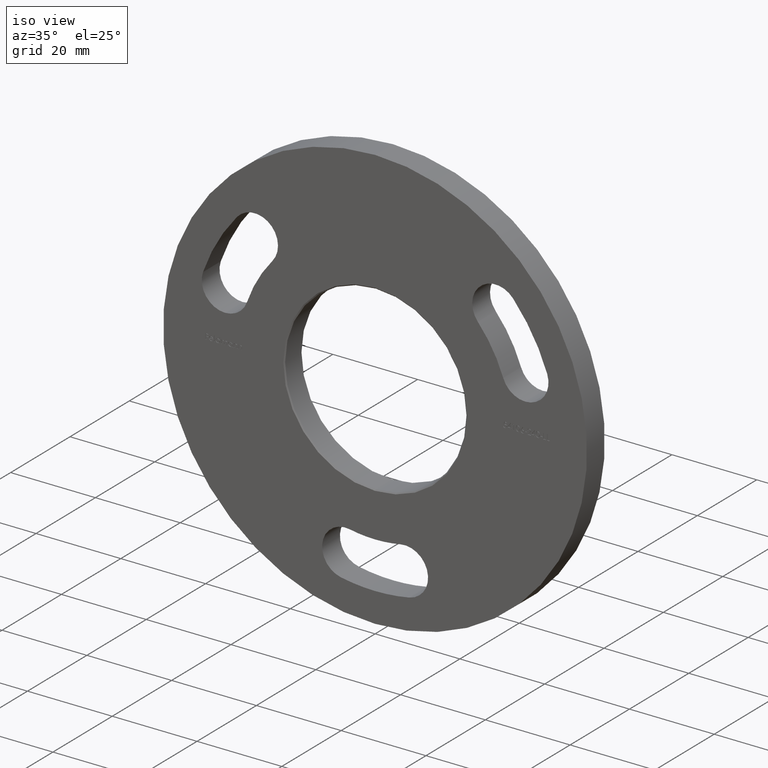
[diagram: clean part render]
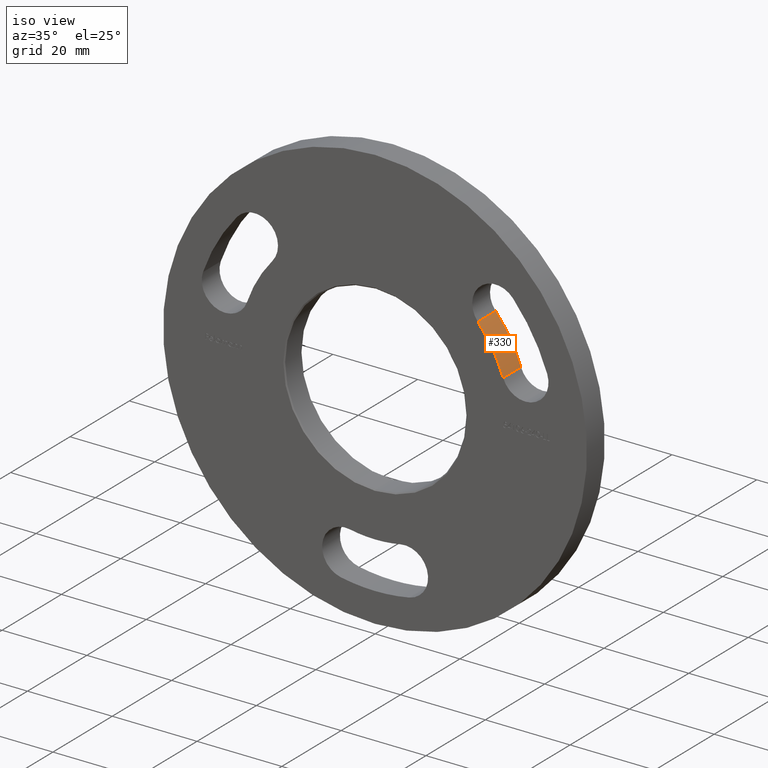
[diagram: same view with one face highlighted and labeled with its STEP entity id]
A machine part, iso view. The second image highlights one B-rep face of the part: STEP entity #330.
In plain terms, the highlighted cylindrical surface (partial cylindrical patch) has radius 32 mm, axis along (-0, -1, -0).
Its self-contained STEP definition (entity closure, byte-faithful):
#168 = CARTESIAN_POINT ( 'NONE',  ( 30.21238000289840642, 6.000000000000000000, 10.54571451161390350 ) ) ;
#219 = DIRECTION ( 'NONE',  ( -0.000000000000000000, -1.000000000000000000, -0.000000000000000000 ) ) ;
#330 = ADVANCED_FACE ( 'NONE', ( #9120 ), #7363, .T. ) ;
#444 = CIRCLE ( 'NONE', #8755, 31.99999999999995737 ) ;
#798 = EDGE_CURVE ( 'NONE', #9784, #4474, #13115, .T. ) ;
#1516 = DIRECTION ( 'NONE',  ( 0.000000000000000000, 0.000000000000000000, 1.000000000000000000 ) ) ;
#1521 = VECTOR ( 'NONE', #12344, 1000.000000000000000 ) ;
#1721 = CARTESIAN_POINT ( 'NONE',  ( 24.23904666956510567, 6.000000000000000000, 20.89183133549198601 ) ) ;
#1796 = DIRECTION ( 'NONE',  ( 0.000000000000000000, 0.000000000000000000, 1.000000000000000000 ) ) ;
#2179 = DIRECTION ( 'NONE',  ( 0.000000000000000000, 0.000000000000000000, -1.000000000000000000 ) ) ;
#2743 = CARTESIAN_POINT ( 'NONE',  ( 24.23904666956510567, 6.000000000000000000, 20.89183133549198601 ) ) ;
#2942 = EDGE_LOOP ( 'NONE', ( #4216, #13258, #10078, #8347 ) ) ;
#3539 = EDGE_CURVE ( 'NONE', #12802, #10908, #444, .T. ) ;
#3932 = DIRECTION ( 'NONE',  ( -0.000000000000000000, -1.000000000000000000, -0.000000000000000000 ) ) ;
#4149 = EDGE_CURVE ( 'NONE', #12802, #9784, #9033, .T. ) ;
#4216 = ORIENTED_EDGE ( 'NONE', *, *, #798, .F. ) ;
#4474 = VERTEX_POINT ( 'NONE', #10845 ) ;
#4841 = DIRECTION ( 'NONE',  ( -0.000000000000000000, -1.000000000000000000, -0.000000000000000000 ) ) ;
#5529 = DIRECTION ( 'NONE',  ( -0.000000000000000000, -1.000000000000000000, -0.000000000000000000 ) ) ;
#6293 = CARTESIAN_POINT ( 'NONE',  ( 0.000000000000000000, 6.000000000000000000, 6.591949208711866959E-14 ) ) ;
#7363 = CYLINDRICAL_SURFACE ( 'NONE', #8363, 31.99999999999995737 ) ;
#8125 = CARTESIAN_POINT ( 'NONE',  ( 30.21238000289839221, 6.000000000000000000, 10.54571451161389817 ) ) ;
#8347 = ORIENTED_EDGE ( 'NONE', *, *, #8848, .T. ) ;
#8363 = AXIS2_PLACEMENT_3D ( 'NONE', #6293, #219, #2179 ) ;
#8755 = AXIS2_PLACEMENT_3D ( 'NONE', #11686, #5529, #1516 ) ;
#8848 = EDGE_CURVE ( 'NONE', #10908, #4474, #11309, .T. ) ;
#9033 = LINE ( 'NONE', #168, #1521 ) ;
#9120 = FACE_OUTER_BOUND ( 'NONE', #2942, .T. ) ;
#9784 = VERTEX_POINT ( 'NONE', #10099 ) ;
#10078 = ORIENTED_EDGE ( 'NONE', *, *, #3539, .T. ) ;
#10099 = CARTESIAN_POINT ( 'NONE',  ( 30.21238000289840642, 0.000000000000000000, 10.54571451161390350 ) ) ;
#10845 = CARTESIAN_POINT ( 'NONE',  ( 24.23904666956510567, 0.000000000000000000, 20.89183133549198601 ) ) ;
#10908 = VERTEX_POINT ( 'NONE', #1721 ) ;
#11309 = LINE ( 'NONE', #2743, #12601 ) ;
#11635 = AXIS2_PLACEMENT_3D ( 'NONE', #13257, #3932, #1796 ) ;
#11686 = CARTESIAN_POINT ( 'NONE',  ( 0.000000000000000000, 6.000000000000000000, 6.591949208711866959E-14 ) ) ;
#12344 = DIRECTION ( 'NONE',  ( -0.000000000000000000, -1.000000000000000000, -0.000000000000000000 ) ) ;
#12601 = VECTOR ( 'NONE', #4841, 1000.000000000000000 ) ;
#12802 = VERTEX_POINT ( 'NONE', #8125 ) ;
#13115 = CIRCLE ( 'NONE', #11635, 31.99999999999995737 ) ;
#13257 = CARTESIAN_POINT ( 'NONE',  ( 0.000000000000000000, 0.000000000000000000, 6.591949208711866959E-14 ) ) ;
#13258 = ORIENTED_EDGE ( 'NONE', *, *, #4149, .F. ) ;